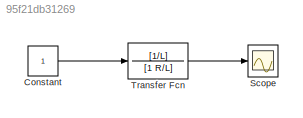
MODEL slx_95f21db31269
KIND model
BLOCK [Constant] Constant
BLOCK [Scope] Scope
  DataFormat = StructureWithTime
  Floating = off
  NumInputPorts = 1
  Ports = [1]
  SampleTime = 0
  ShowLegends = off
BLOCK [TransferFcn] Transfer Fcn
  Denominator = [1 R/L]
  Numerator = [1/L]
LINE Constant:1 -> Transfer Fcn:1
LINE Transfer Fcn:1 -> Scope:1
